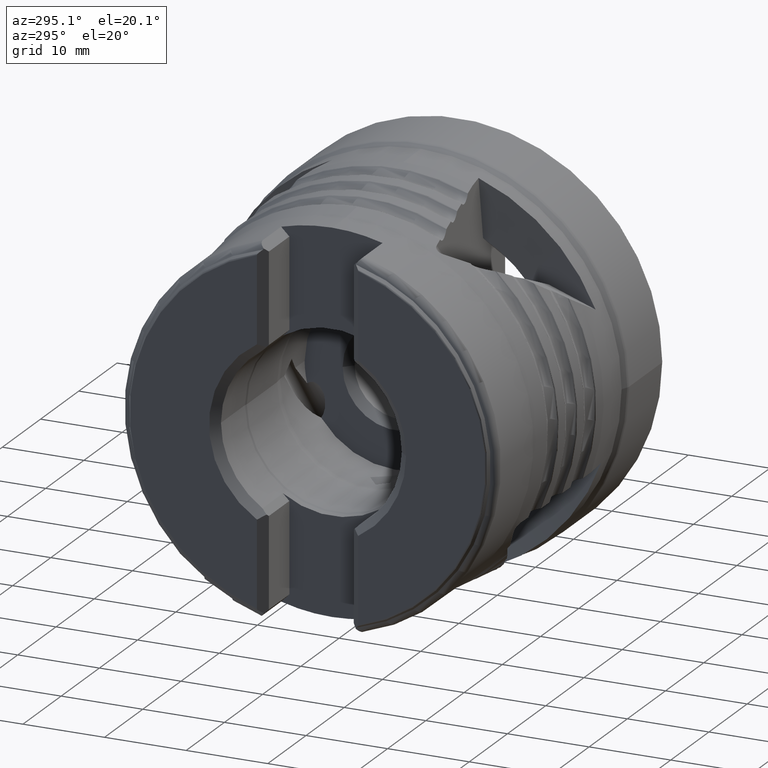
[diagram: clean part render]
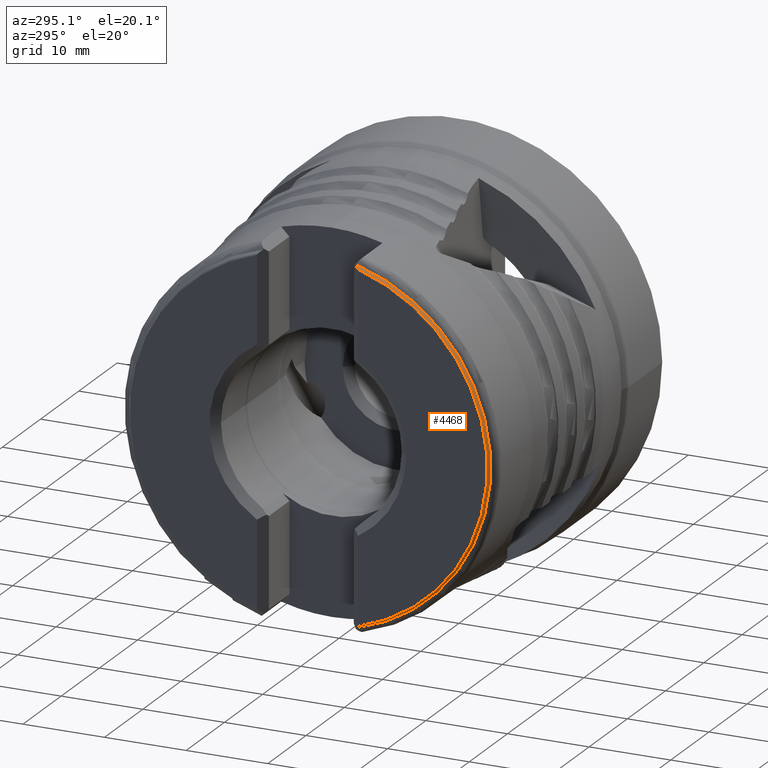
[diagram: same view with one face highlighted and labeled with its STEP entity id]
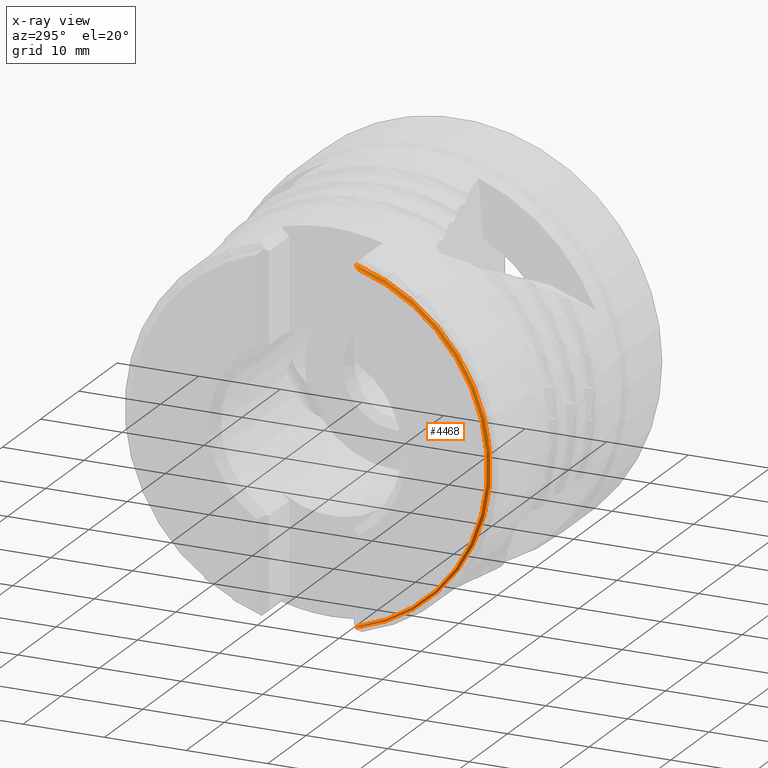
[diagram: x-ray of the same camera — body ghosted, the highlighted face saturated]
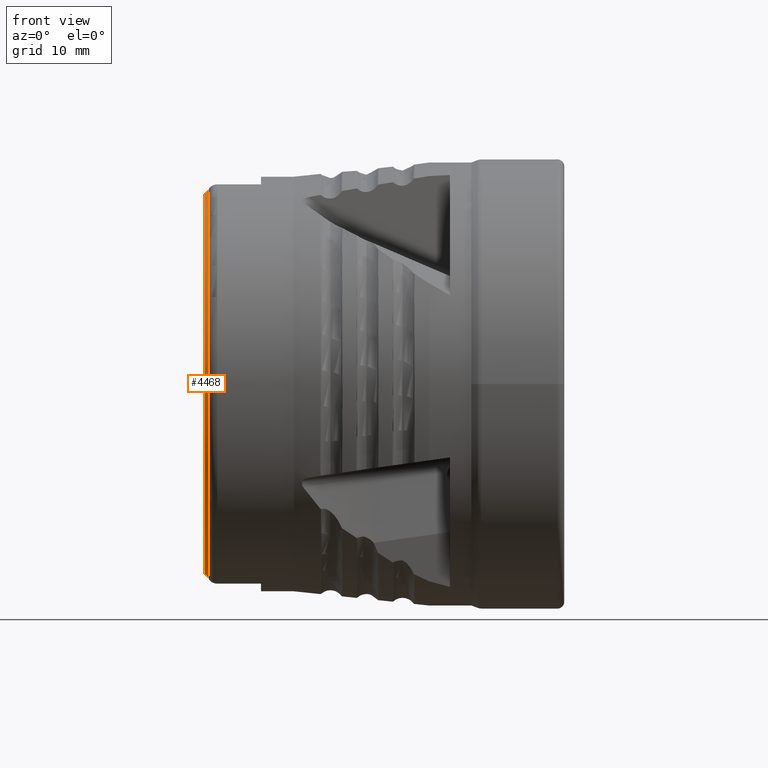
[diagram: same view with one face highlighted and labeled with its STEP entity id]
A machine part, auxiliary view. The second image highlights one B-rep face of the part: STEP entity #4468.
The next image is the same camera in x-ray: the body ghosted, the highlighted face saturated — about 0% of this face is hidden behind the body in this view.
A second angle (front view) of the same face is appended — the face is thin or edge-on in the first view.
In plain terms, the highlighted conical surface has half-angle 30 deg.
Its self-contained STEP definition (entity closure, byte-faithful):
#1868 = CARTESIAN_POINT ( 'NONE',  ( -37.72900000000000600, -5.678999999999956700, -21.46532946019883100 ) ) ;
#1888 = CARTESIAN_POINT ( 'NONE',  ( -38.15000000000001300, -6.099999999999963200, -21.09660047066959300 ) ) ;
#1914 = CARTESIAN_POINT ( 'NONE',  ( -38.15000000000001300, -6.099999999999974800, 21.09660047066959300 ) ) ;
#1915 = CARTESIAN_POINT ( 'NONE',  ( -37.72900000000001300, -5.678999999999962100, 21.46532946019884100 ) ) ;
#3518 = EDGE_LOOP ( 'NONE', ( #5693, #5485, #5717, #5638 ) ) ;
#3526 = AXIS2_PLACEMENT_3D ( 'NONE', #6330, #6331, #6332 ) ;
#3527 = CIRCLE ( 'NONE', #3526, 22.20386024624726000 ) ;
#3529 = CIRCLE ( 'NONE', #3532, 21.96079578291861600 ) ;
#3532 = AXIS2_PLACEMENT_3D ( 'NONE', #6347, #6348, #6349 ) ;
#3670 = AXIS2_PLACEMENT_3D ( 'NONE', #6761, #6762, #6759 ) ;
#3785 = VERTEX_POINT ( 'NONE', #1868 ) ;
#3806 = VERTEX_POINT ( 'NONE', #1888 ) ;
#3834 = VERTEX_POINT ( 'NONE', #1914 ) ;
#3835 = VERTEX_POINT ( 'NONE', #1915 ) ;
#4362 = EDGE_CURVE ( 'NONE', #3835, #3785, #3527, .T. ) ;
#4364 = EDGE_CURVE ( 'NONE', #3835, #3834, #6212, .T. ) ;
#4366 = EDGE_CURVE ( 'NONE', #3834, #3806, #3529, .T. ) ;
#4368 = EDGE_CURVE ( 'NONE', #3806, #3785, #6201, .T. ) ;
#4468 = ADVANCED_FACE ( 'NONE', ( #6757 ), #5011, .T. ) ;
#5011 = CONICAL_SURFACE ( 'NONE', #3670, 22.20386024624726000, 0.5235987755979583100 ) ;
#5485 = ORIENTED_EDGE ( 'NONE', *, *, #4364, .T. ) ;
#5638 = ORIENTED_EDGE ( 'NONE', *, *, #4368, .T. ) ;
#5693 = ORIENTED_EDGE ( 'NONE', *, *, #4362, .F. ) ;
#5717 = ORIENTED_EDGE ( 'NONE', *, *, #4366, .T. ) ;
#6201 =( BOUNDED_CURVE ( )  B_SPLINE_CURVE ( 3, ( #6341, #6356, #6357, #6358 ),
 .UNSPECIFIED., .F., .T. ) 
 B_SPLINE_CURVE_WITH_KNOTS ( ( 4, 4 ),
 ( 3.883862564176188100, 3.900014913825363500 ),
 .UNSPECIFIED. ) 
 CURVE ( )  GEOMETRIC_REPRESENTATION_ITEM ( )  RATIONAL_B_SPLINE_CURVE ( ( 1.000000000000000000, 0.9999782585849074100, 0.9999782585849074100, 1.000000000000000000 ) ) 
 REPRESENTATION_ITEM ( '' )  );
#6212 =( BOUNDED_CURVE ( )  B_SPLINE_CURVE ( 3, ( #6333, #6338, #6339, #6340 ),
 .UNSPECIFIED., .F., .T. ) 
 B_SPLINE_CURVE_WITH_KNOTS ( ( 4, 4 ),
 ( 2.383170393354221000, 2.399322743003396800 ),
 .UNSPECIFIED. ) 
 CURVE ( )  GEOMETRIC_REPRESENTATION_ITEM ( )  RATIONAL_B_SPLINE_CURVE ( ( 1.000000000000000000, 0.9999782585849074100, 0.9999782585849074100, 1.000000000000000000 ) ) 
 REPRESENTATION_ITEM ( '' )  );
#6330 = CARTESIAN_POINT ( 'NONE',  ( -37.72900000000000600, 0.0000000000000000000, 0.0000000000000000000 ) ) ;
#6331 = DIRECTION ( 'NONE',  ( 1.000000000000000000, -0.0000000000000000000, -0.0000000000000000000 ) ) ;
#6332 = DIRECTION ( 'NONE',  ( 0.0000000000000000000, 0.0000000000000000000, -1.000000000000000000 ) ) ;
#6333 = CARTESIAN_POINT ( 'NONE',  ( -37.72900000000001300, -5.678999999999962100, 21.46532946019884100 ) ) ;
#6338 = CARTESIAN_POINT ( 'NONE',  ( -37.87054755165393500, -5.820547551653898900, 21.34334652496098200 ) ) ;
#6339 = CARTESIAN_POINT ( 'NONE',  ( -38.01088393609886400, -5.960883936098829500, 21.22043418949645900 ) ) ;
#6340 = CARTESIAN_POINT ( 'NONE',  ( -38.15000000000001300, -6.099999999999974800, 21.09660047066959300 ) ) ;
#6341 = CARTESIAN_POINT ( 'NONE',  ( -38.15000000000001300, -6.099999999999963200, -21.09660047066959300 ) ) ;
#6347 = CARTESIAN_POINT ( 'NONE',  ( -38.15000000000001300, 0.0000000000000000000, 0.0000000000000000000 ) ) ;
#6348 = DIRECTION ( 'NONE',  ( 1.000000000000000000, -0.0000000000000000000, -0.0000000000000000000 ) ) ;
#6349 = DIRECTION ( 'NONE',  ( 0.0000000000000000000, 0.0000000000000000000, -1.000000000000000000 ) ) ;
#6356 = CARTESIAN_POINT ( 'NONE',  ( -38.01088393609886400, -5.960883936098816200, -21.22043418949645100 ) ) ;
#6357 = CARTESIAN_POINT ( 'NONE',  ( -37.87054755165393500, -5.820547551653898000, -21.34334652496097500 ) ) ;
#6358 = CARTESIAN_POINT ( 'NONE',  ( -37.72900000000000600, -5.678999999999956700, -21.46532946019883100 ) ) ;
#6757 = FACE_OUTER_BOUND ( 'NONE', #3518, .T. ) ;
#6759 = DIRECTION ( 'NONE',  ( 0.0000000000000000000, 0.0000000000000000000, -1.000000000000000000 ) ) ;
#6761 = CARTESIAN_POINT ( 'NONE',  ( -37.72900000000000600, 0.0000000000000000000, 0.0000000000000000000 ) ) ;
#6762 = DIRECTION ( 'NONE',  ( 1.000000000000000000, -0.0000000000000000000, -0.0000000000000000000 ) ) ;